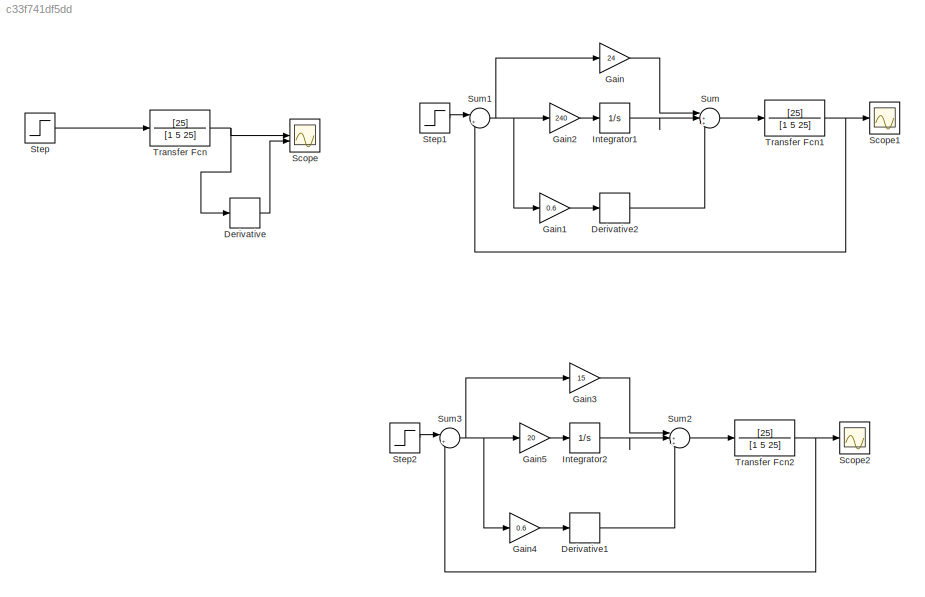
MODEL slx_c33f741df5dd
KIND model
CONFIG AbsTol = auto
CONFIG EnableMultiTasking = off
CONFIG FixedStep = 1e-5
CONFIG MaxStep = auto
CONFIG MinStep = auto
CONFIG RelTol = 1e-3
CONFIG SampleTimeConstraint = Unconstrained
CONFIG SolverName = FixedStepAuto
CONFIG StartTime = 0.0
CONFIG StopTime = 3
BLOCK [Derivative] Derivative
BLOCK [Derivative] Derivative1
BLOCK [Derivative] Derivative2
BLOCK [Gain] Gain
  Gain = 24
BLOCK [Gain] Gain1
  Gain = 0.6
BLOCK [Gain] Gain2
  Gain = 240
BLOCK [Gain] Gain3
  Gain = 15
BLOCK [Gain] Gain4
  Gain = 0.6
BLOCK [Gain] Gain5
  Gain = 20
BLOCK [Integrator] Integrator1
BLOCK [Integrator] Integrator2
BLOCK [Scope] Scope
  Floating = off
  NumInputPorts = 2
  ScopeSpecificationString = Simulink.scopes.TimeScopeBlockCfg('CurrentConfiguration', extmgr.ConfigurationSet(extmgr.Configuration('Core','General UI',true),extmgr.Configuration('Core','Source UI',true),extmgr.Configuration('Sources','WiredSimulink',true),extmgr.Configuration('Visuals','Time Domain',true,'SerializedDisplays',{struct('MinYLimReal','-0.84242','MaxYLimReal','3.12856','YLabelReal','','MinYLimMag','0.00000','MaxY...<+1779ch>
BLOCK [Scope] Scope1
  Floating = off
  NumInputPorts = 1
  ScopeSpecificationString = Simulink.scopes.TimeScopeBlockCfg('CurrentConfiguration', extmgr.ConfigurationSet(extmgr.Configuration('Core','General UI',true),extmgr.Configuration('Core','Source UI',true),extmgr.Configuration('Sources','WiredSimulink',true,'DataLoggingVariableName','ScopeData1'),extmgr.Configuration('Visuals','Time Domain',true,'SerializedDisplays',{struct('MinYLimReal','-0.2007','MaxYLimReal','1.80634','YLabe...<+1370ch>
BLOCK [Scope] Scope2
  Floating = off
  NumInputPorts = 1
  ScopeSpecificationString = Simulink.scopes.TimeScopeBlockCfg('CurrentConfiguration', extmgr.ConfigurationSet(extmgr.Configuration('Core','General UI',true),extmgr.Configuration('Core','Source UI',true),extmgr.Configuration('Sources','WiredSimulink',true,'DataLoggingVariableName','ScopeData2'),extmgr.Configuration('Visuals','Time Domain',true,'SerializedDisplays',{struct('MinYLimReal','-0.14601','MaxYLimReal','1.31406','YLab...<+1372ch>
BLOCK [Step] Step
  SampleTime = 0
BLOCK [Step] Step1
  SampleTime = 0
BLOCK [Step] Step2
  SampleTime = 0
BLOCK [Sum] Sum
  Inputs = |+++
BLOCK [Sum] Sum1
  Inputs = |+-
BLOCK [Sum] Sum2
  Inputs = |+++
BLOCK [Sum] Sum3
  Inputs = |+-
BLOCK [TransferFcn] Transfer Fcn
  Denominator = [1 5 25]
  Numerator = [25]
BLOCK [TransferFcn] Transfer Fcn1
  Denominator = [1 5 25]
  Numerator = [25]
BLOCK [TransferFcn] Transfer Fcn2
  Denominator = [1 5 25]
  Numerator = [25]
LINE Derivative1:1 -> Sum2:3
LINE Derivative2:1 -> Sum:3
LINE Derivative:1 -> Scope:2
LINE Gain1:1 -> Derivative2:1
LINE Gain2:1 -> Integrator1:1
LINE Gain3:1 -> Sum2:1
LINE Gain4:1 -> Derivative1:1
LINE Gain5:1 -> Integrator2:1
LINE Gain:1 -> Sum:1
LINE Integrator1:1 -> Sum:2
LINE Integrator2:1 -> Sum2:2
LINE Step1:1 -> Sum1:1
LINE Step2:1 -> Sum3:1
LINE Step:1 -> Transfer Fcn:1
NET Sum1:1 -> Gain1:1, Gain2:1, Gain:1
LINE Sum2:1 -> Transfer Fcn2:1
NET Sum3:1 -> Gain3:1, Gain4:1, Gain5:1
LINE Sum:1 -> Transfer Fcn1:1
NET Transfer Fcn1:1 -> Scope1:1, Sum1:2
NET Transfer Fcn2:1 -> Scope2:1, Sum3:2
NET Transfer Fcn:1 -> Derivative:1, Scope:1
note: NET lines group one-source signal fan-out (src -> all destinations, sorted); 1:1 wires keep LINE
